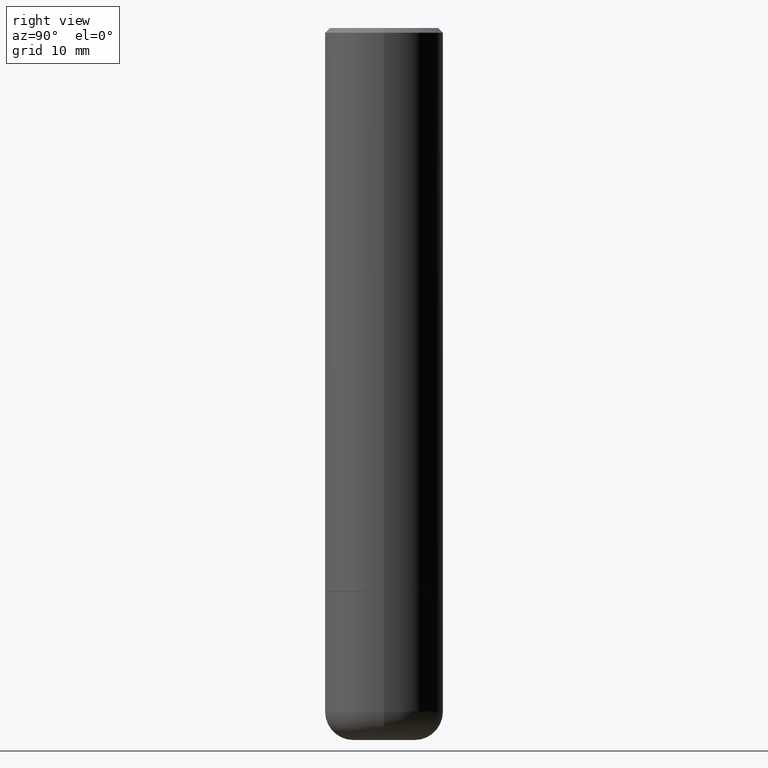
[diagram: clean part render]
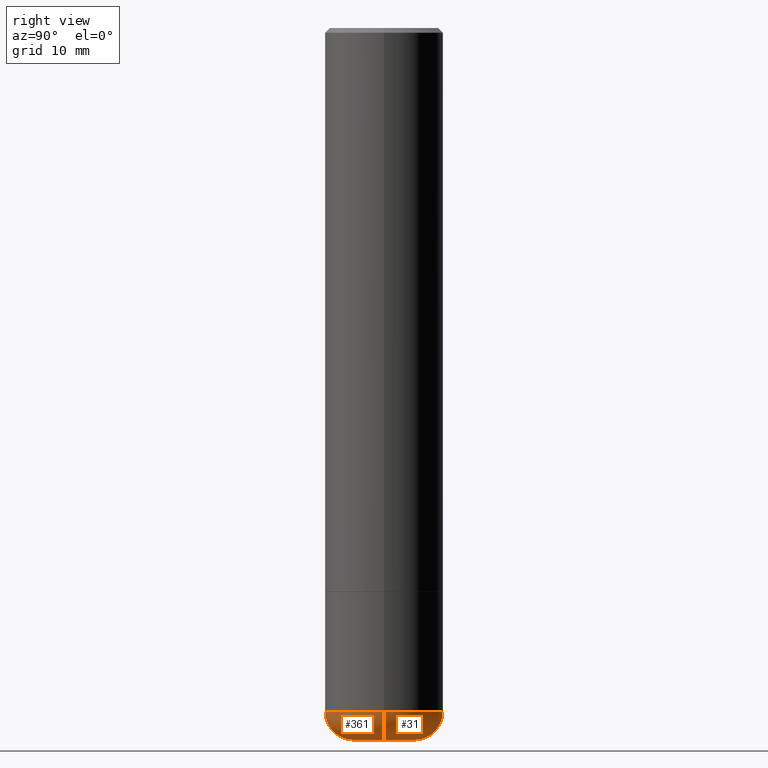
[diagram: same view with one multi-face feature highlighted, each face labeled with its STEP entity id]
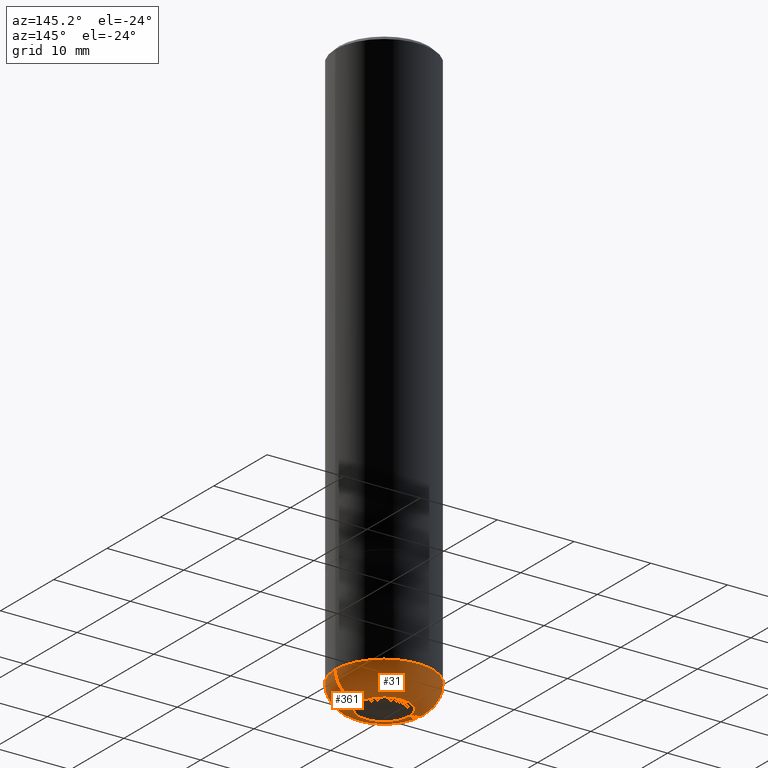
[diagram: same view with one multi-face feature highlighted, each face labeled with its STEP entity id]
A machine part, right view. The highlighted faces form ONE feature: a constant-radius fillet chain: 2 tangent blend faces with common blend radius 3.048 mm. The faces share edges in the B-rep.
A second angle (auxiliary view) of the same feature is appended — it is thin or edge-on in the first view.
Their STEP definitions:
[1] entity #361 (Torus):
#12 = AXIS2_PLACEMENT_3D ( 'NONE', #177, #255, #410 ) ;
#34 = ORIENTED_EDGE ( 'NONE', *, *, #83, .T. ) ;
#48 = DIRECTION ( 'NONE',  ( -6.982962677686266711E-15, -1.000000000000000000, 3.491481338843145583E-15 ) ) ;
#58 = CIRCLE ( 'NONE', #458, 0.1200000000000000927 ) ;
#83 = EDGE_CURVE ( 'NONE', #108, #446, #331, .T. ) ;
#86 = AXIS2_PLACEMENT_3D ( 'NONE', #319, #48, #170 ) ;
#90 = CARTESIAN_POINT ( 'NONE',  ( -0.1289528157401959862, -8.918652260793341109E-15, -3.000000000000000444 ) ) ;
#102 = CARTESIAN_POINT ( 'NONE',  ( 0.2500000000000000555, -1.180122287867913443E-14, -2.880004569232299527 ) ) ;
#107 = CARTESIAN_POINT ( 'NONE',  ( 7.042961335728249090E-29, -1.005548220925756617E-14, -2.880004569232299527 ) ) ;
#108 = VERTEX_POINT ( 'NONE', #90 ) ;
#124 = CARTESIAN_POINT ( 'NONE',  ( 7.336406418555409790E-29, -1.047444401652943635E-14, -3.000000000000000444 ) ) ;
#135 = EDGE_CURVE ( 'NONE', #446, #347, #301, .T. ) ;
#144 = EDGE_LOOP ( 'NONE', ( #489, #34, #264, #186 ) ) ;
#170 = DIRECTION ( 'NONE',  ( 1.000000000000000000, -6.982962677686262766E-15, 0.000000000000000000 ) ) ;
#177 = CARTESIAN_POINT ( 'NONE',  ( 7.042961335728249090E-29, -1.005548220925756617E-14, -2.880004569232299527 ) ) ;
#186 = ORIENTED_EDGE ( 'NONE', *, *, #351, .F. ) ;
#193 = CARTESIAN_POINT ( 'NONE',  ( 0.1289528157401959862, -1.137491671602577837E-14, -3.000000000000000444 ) ) ;
#200 = AXIS2_PLACEMENT_3D ( 'NONE', #124, #313, #209 ) ;
#206 = AXIS2_PLACEMENT_3D ( 'NONE', #107, #289, #405 ) ;
#207 = DIRECTION ( 'NONE',  ( 7.105427357601001859E-15, 1.000000000000000000, -3.491481338843145583E-15 ) ) ;
#209 = DIRECTION ( 'NONE',  ( 1.000000000000000000, -6.982962677686259611E-15, 0.000000000000000000 ) ) ;
#219 = EDGE_CURVE ( 'NONE', #108, #335, #58, .T. ) ;
#249 = CARTESIAN_POINT ( 'NONE',  ( -0.2500000000000000555, -7.397518355104768470E-15, -2.880004569232299527 ) ) ;
#255 = DIRECTION ( 'NONE',  ( -2.445468806185136597E-29, 3.491481338843145583E-15, 1.000000000000000000 ) ) ;
#264 = ORIENTED_EDGE ( 'NONE', *, *, #135, .T. ) ;
#271 = TOROIDAL_SURFACE ( 'NONE', #206, 0.1300000000000001710, 0.1200000000000000927 ) ;
#289 = DIRECTION ( 'NONE',  ( -2.445468806185136597E-29, 3.491481338843145583E-15, 1.000000000000000000 ) ) ;
#301 = CIRCLE ( 'NONE', #86, 0.1200000000000000927 ) ;
#313 = DIRECTION ( 'NONE',  ( -2.445468806185136597E-29, 3.491481338843145583E-15, 1.000000000000000000 ) ) ;
#319 = CARTESIAN_POINT ( 'NONE',  ( 0.1300000000000001710, -1.096326735735678116E-14, -2.880004569232299527 ) ) ;
#331 = CIRCLE ( 'NONE', #200, 0.1289528157401959862 ) ;
#335 = VERTEX_POINT ( 'NONE', #249 ) ;
#347 = VERTEX_POINT ( 'NONE', #102 ) ;
#351 = EDGE_CURVE ( 'NONE', #335, #347, #466, .T. ) ;
#361 = ADVANCED_FACE ( 'NONE', ( #369 ), #271, .T. ) ;
#369 = FACE_OUTER_BOUND ( 'NONE', #144, .T. ) ;
#405 = DIRECTION ( 'NONE',  ( 1.000000000000000000, -6.982962677686270655E-15, 4.883557194083114583E-29 ) ) ;
#410 = DIRECTION ( 'NONE',  ( 1.000000000000000000, -6.982962677686269077E-15, 0.000000000000000000 ) ) ;
#434 = CARTESIAN_POINT ( 'NONE',  ( -0.1300000000000001710, -9.131776652769433533E-15, -2.880004569232299527 ) ) ;
#435 = DIRECTION ( 'NONE',  ( -1.000000000000000000, 7.105427357601001859E-15, 0.000000000000000000 ) ) ;
#446 = VERTEX_POINT ( 'NONE', #193 ) ;
#458 = AXIS2_PLACEMENT_3D ( 'NONE', #434, #207, #435 ) ;
#466 = CIRCLE ( 'NONE', #12, 0.2500000000000000555 ) ;
#489 = ORIENTED_EDGE ( 'NONE', *, *, #219, .F. ) ;
[2] entity #31 (Torus):
#14 = DIRECTION ( 'NONE',  ( -2.445468806185136597E-29, 3.491481338843145583E-15, 1.000000000000000000 ) ) ;
#16 = DIRECTION ( 'NONE',  ( 1.000000000000000000, -6.982962677686259611E-15, 0.000000000000000000 ) ) ;
#22 = TOROIDAL_SURFACE ( 'NONE', #324, 0.1300000000000001710, 0.1200000000000000927 ) ;
#31 = ADVANCED_FACE ( 'NONE', ( #236 ), #22, .T. ) ;
#37 = DIRECTION ( 'NONE',  ( -2.445468806185136597E-29, 3.491481338843145583E-15, 1.000000000000000000 ) ) ;
#48 = DIRECTION ( 'NONE',  ( -6.982962677686266711E-15, -1.000000000000000000, 3.491481338843145583E-15 ) ) ;
#57 = ORIENTED_EDGE ( 'NONE', *, *, #219, .T. ) ;
#58 = CIRCLE ( 'NONE', #458, 0.1200000000000000927 ) ;
#86 = AXIS2_PLACEMENT_3D ( 'NONE', #319, #48, #170 ) ;
#88 = DIRECTION ( 'NONE',  ( 1.000000000000000000, -6.982962677686269077E-15, 0.000000000000000000 ) ) ;
#90 = CARTESIAN_POINT ( 'NONE',  ( -0.1289528157401959862, -8.918652260793341109E-15, -3.000000000000000444 ) ) ;
#98 = EDGE_CURVE ( 'NONE', #347, #335, #309, .T. ) ;
#100 = ORIENTED_EDGE ( 'NONE', *, *, #168, .T. ) ;
#102 = CARTESIAN_POINT ( 'NONE',  ( 0.2500000000000000555, -1.180122287867913443E-14, -2.880004569232299527 ) ) ;
#108 = VERTEX_POINT ( 'NONE', #90 ) ;
#132 = CARTESIAN_POINT ( 'NONE',  ( 7.336406418555409790E-29, -1.047444401652943635E-14, -3.000000000000000444 ) ) ;
#133 = AXIS2_PLACEMENT_3D ( 'NONE', #132, #284, #16 ) ;
#135 = EDGE_CURVE ( 'NONE', #446, #347, #301, .T. ) ;
#168 = EDGE_CURVE ( 'NONE', #446, #108, #238, .T. ) ;
#170 = DIRECTION ( 'NONE',  ( 1.000000000000000000, -6.982962677686262766E-15, 0.000000000000000000 ) ) ;
#190 = CARTESIAN_POINT ( 'NONE',  ( 7.042961335728249090E-29, -1.005548220925756617E-14, -2.880004569232299527 ) ) ;
#193 = CARTESIAN_POINT ( 'NONE',  ( 0.1289528157401959862, -1.137491671602577837E-14, -3.000000000000000444 ) ) ;
#207 = DIRECTION ( 'NONE',  ( 7.105427357601001859E-15, 1.000000000000000000, -3.491481338843145583E-15 ) ) ;
#219 = EDGE_CURVE ( 'NONE', #108, #335, #58, .T. ) ;
#236 = FACE_OUTER_BOUND ( 'NONE', #288, .T. ) ;
#238 = CIRCLE ( 'NONE', #133, 0.1289528157401959862 ) ;
#249 = CARTESIAN_POINT ( 'NONE',  ( -0.2500000000000000555, -7.397518355104768470E-15, -2.880004569232299527 ) ) ;
#284 = DIRECTION ( 'NONE',  ( -2.445468806185136597E-29, 3.491481338843145583E-15, 1.000000000000000000 ) ) ;
#288 = EDGE_LOOP ( 'NONE', ( #100, #57, #443, #299 ) ) ;
#299 = ORIENTED_EDGE ( 'NONE', *, *, #135, .F. ) ;
#301 = CIRCLE ( 'NONE', #86, 0.1200000000000000927 ) ;
#309 = CIRCLE ( 'NONE', #430, 0.2500000000000000555 ) ;
#319 = CARTESIAN_POINT ( 'NONE',  ( 0.1300000000000001710, -1.096326735735678116E-14, -2.880004569232299527 ) ) ;
#324 = AXIS2_PLACEMENT_3D ( 'NONE', #190, #37, #388 ) ;
#335 = VERTEX_POINT ( 'NONE', #249 ) ;
#347 = VERTEX_POINT ( 'NONE', #102 ) ;
#353 = CARTESIAN_POINT ( 'NONE',  ( 7.042961335728249090E-29, -1.005548220925756617E-14, -2.880004569232299527 ) ) ;
#388 = DIRECTION ( 'NONE',  ( 1.000000000000000000, -6.982962677686270655E-15, 4.883557194083114583E-29 ) ) ;
#430 = AXIS2_PLACEMENT_3D ( 'NONE', #353, #14, #88 ) ;
#434 = CARTESIAN_POINT ( 'NONE',  ( -0.1300000000000001710, -9.131776652769433533E-15, -2.880004569232299527 ) ) ;
#435 = DIRECTION ( 'NONE',  ( -1.000000000000000000, 7.105427357601001859E-15, 0.000000000000000000 ) ) ;
#443 = ORIENTED_EDGE ( 'NONE', *, *, #98, .F. ) ;
#446 = VERTEX_POINT ( 'NONE', #193 ) ;
#458 = AXIS2_PLACEMENT_3D ( 'NONE', #434, #207, #435 ) ;